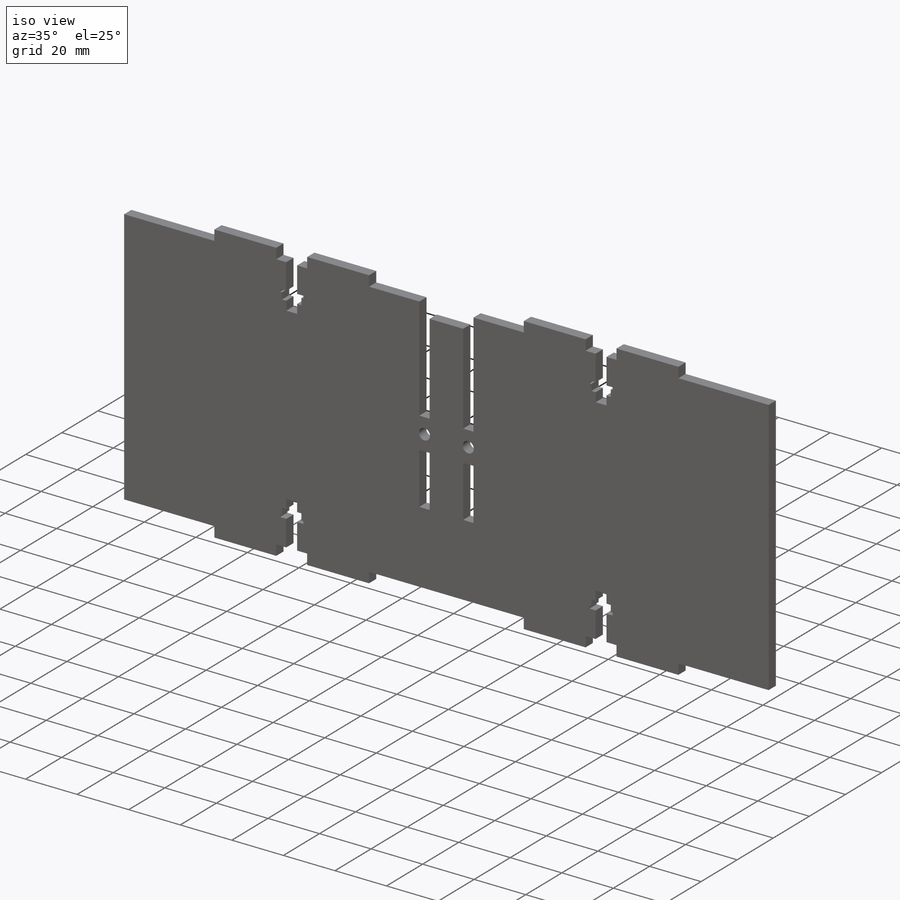
[diagram: iso view]
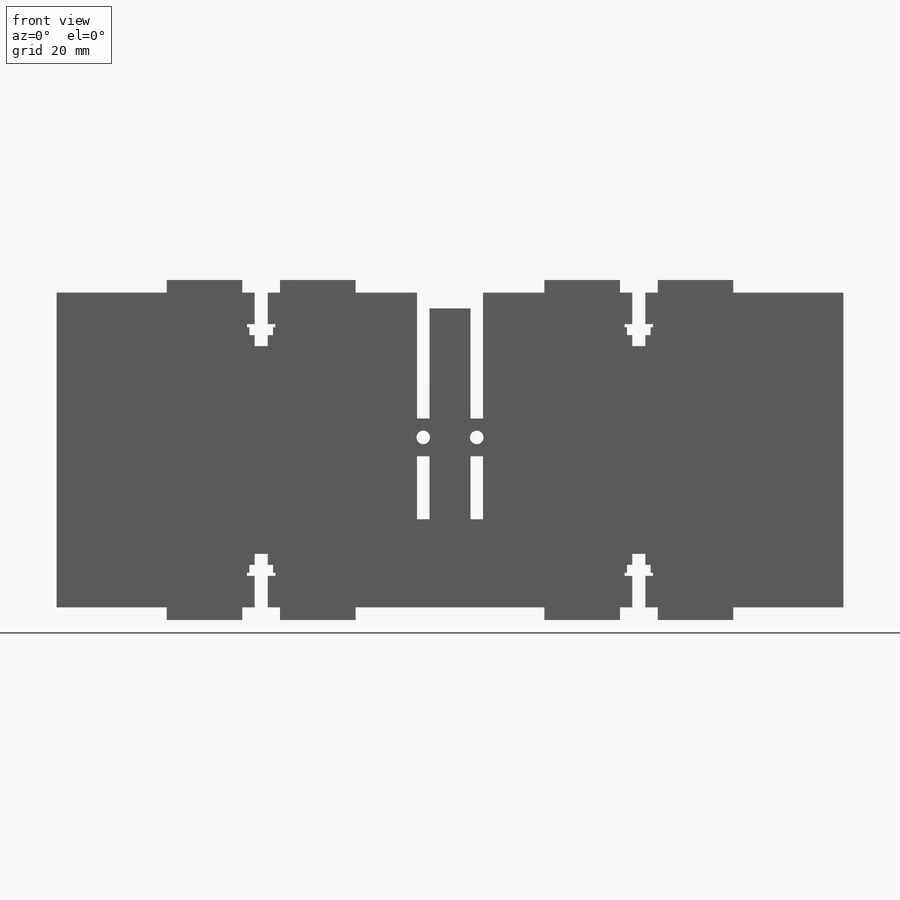
[diagram: front view]
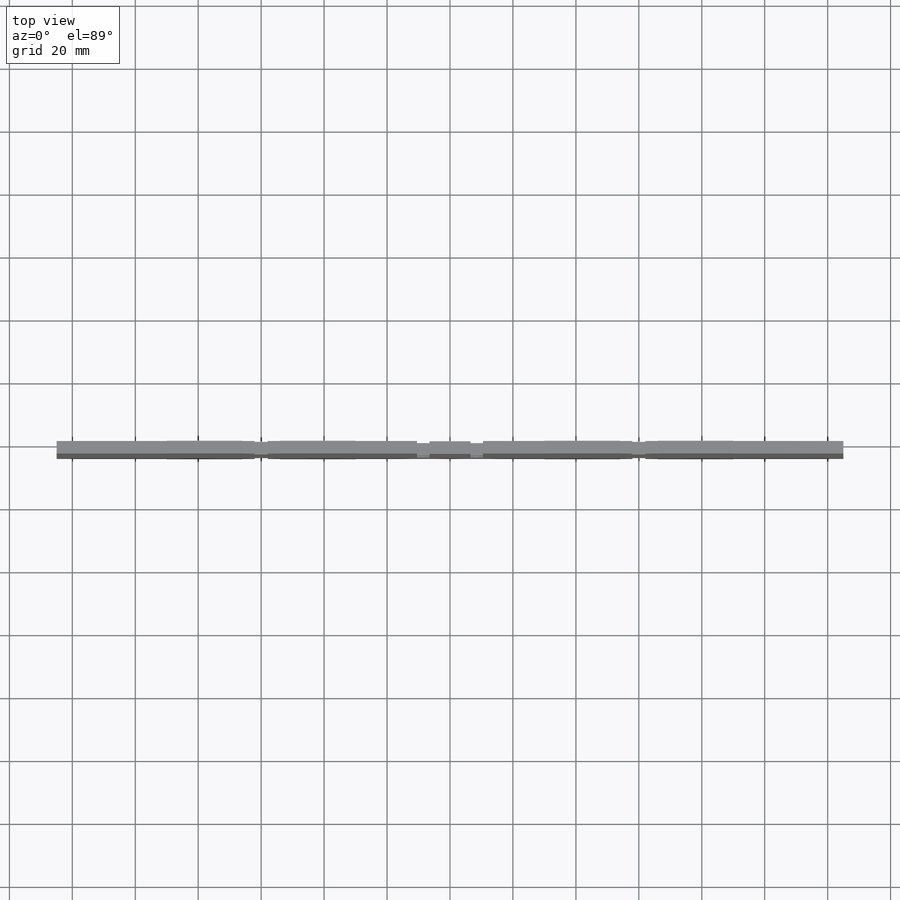
[diagram: top view]
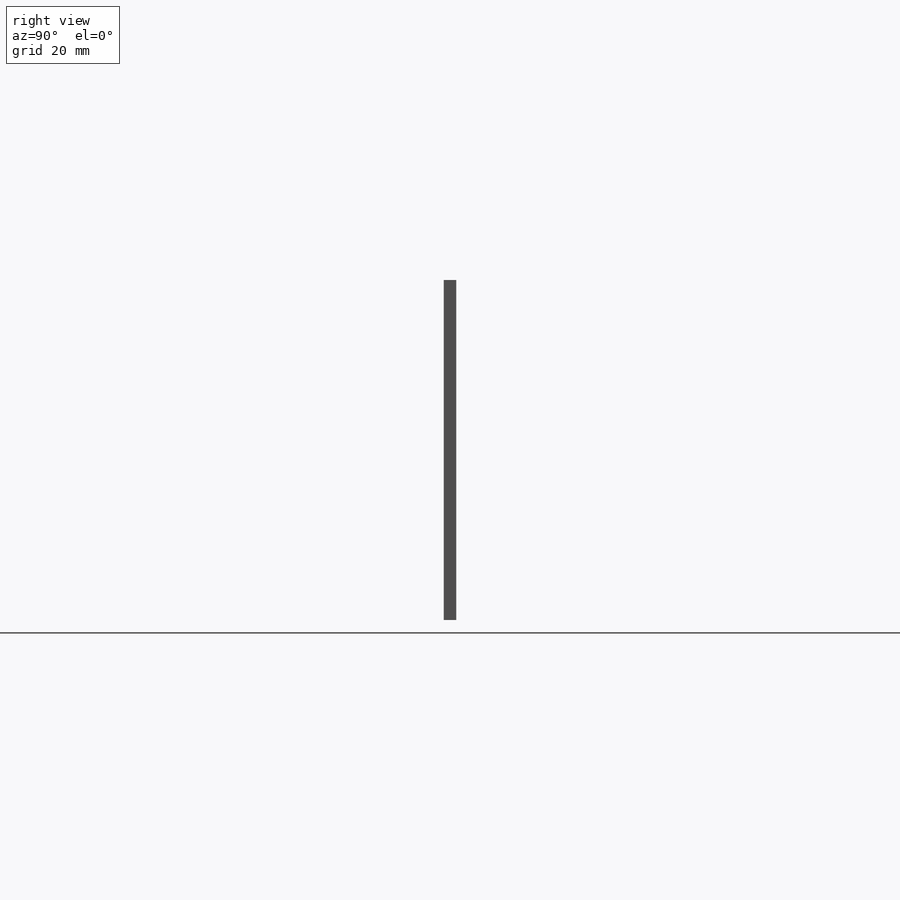
[diagram: right view]
SOLIDWORKS PART (.sldprt)
format: sldprt  version: not decoded by parser v0  size: 510,464 bytes
history: native  units: mm
features: sketch x7, cut_extrude x3, extrude x2, material x1, mirror x1, hole x1 (+11 scaffold rows collapsed)
feature tree (26):
  scaffold x11  (default folders/planes/origin — collapsed)
  material  "Material <not specified>"
  sketch  "Sketch1"  dims[D1=250.0mm D2=100.0mm]
  extrude  "Boss-Extrude1"  Depth=4mm
  sketch  "Sketch2"  dims[c1.D1=60.0mm c1.D2=35.0mm c1.D3=12.0mm c1.D4=24.0mm c2.D2=35.0mm c2.D1=24.0mm]
  extrude  "Boss-Extrude2"  Depth=4mm
  sketch  "Sketch3"  dims[c1.D1=4.0mm c1.D2=20.0mm c1.D3=12.0mm c1.D4=20.0mm c1.D5=20.0mm c2.D2=28.0mm c2.D4=6.5mm]
  cut_extrude  "Cut-Extrude1"  [1 undecoded]
  mirror  "Mirror1"
  hole  "M4 Clearance Hole1"  Diameter=4.3mm Depth=6mm
  sketch  "Sketch5"
  sketch  "Sketch4"  dims[hole-wizard template sketch: 50 standard entries collapsed; hole parameters above]
  sketch  "Sketch6"  dims[c1.D1=4.2mm c1.D2=13.0mm c1.D3=7.0mm c1.D4=3.5mm c1.D5=7.0mm c1.D6=4.2mm c1.D7=17.0mm c1.D8=7.5mm c1.D9=2.5mm c1.D10=9.0mm c1.D11=1.0mm c2.D2=10.0mm]
  cut_extrude  "Cut-Extrude2"  Depth=10mm
  sketch  "Sketch7"  dims[D1=5.0mm]
  cut_extrude  "Cut-Extrude3"  Depth=10mm
decode coverage: 11 of 14 modeling features carry decoded parameters
note: ~ marks probable driven/reference dimensions
note: 1 parameter value undecoded
note: suppression state not decoded; provenance and decode notes live in map.json
